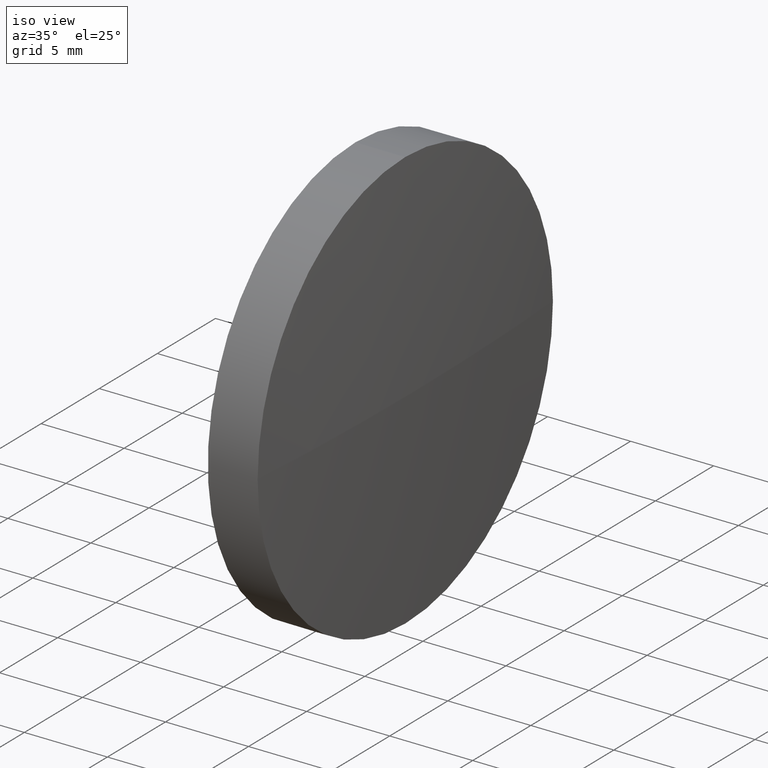
[diagram: clean part render]
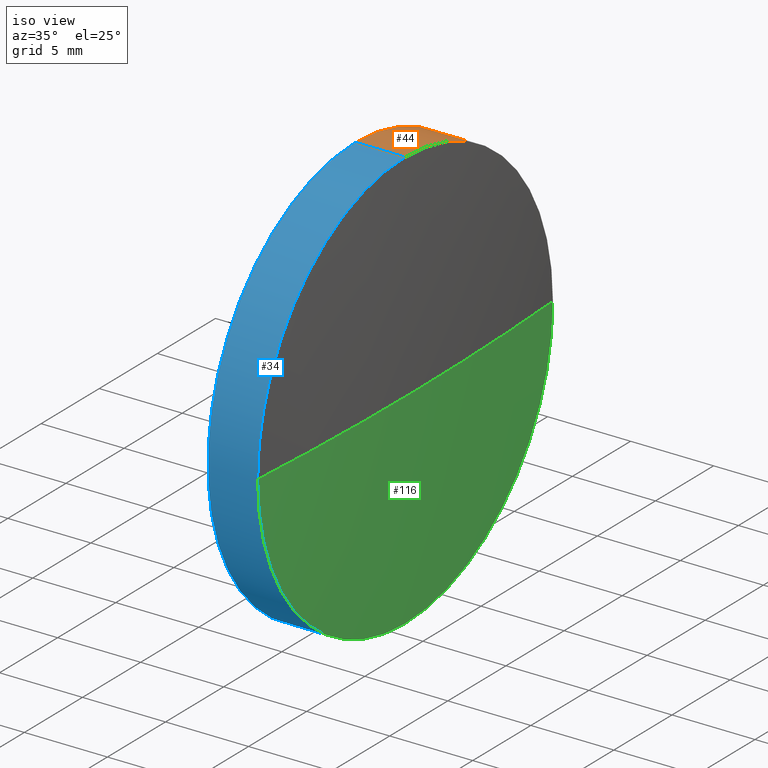
[diagram: same view with three faces highlighted in distinct colors, each labeled with its STEP entity id]
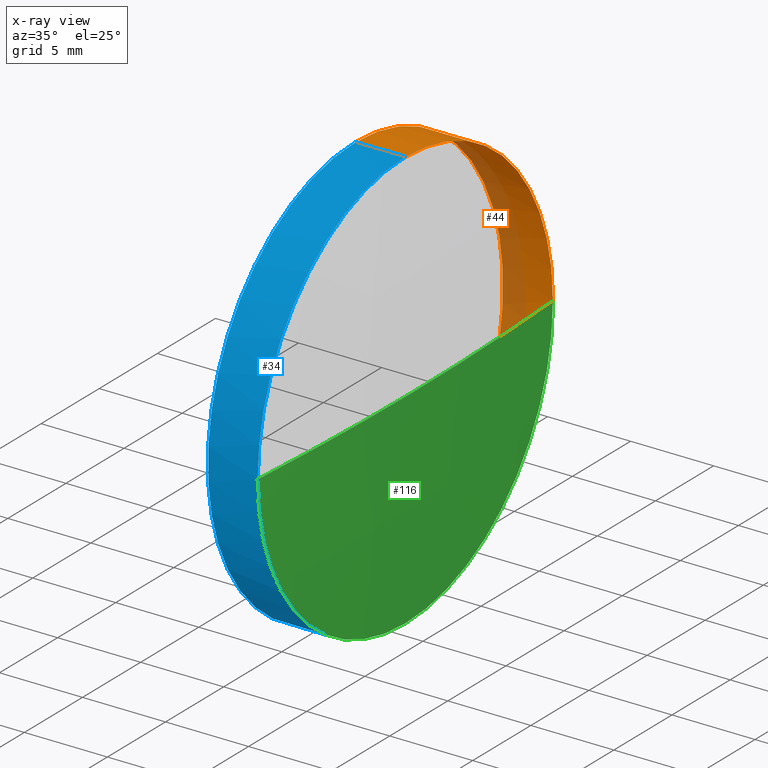
[diagram: x-ray of the same camera — body ghosted, the three highlighted faces saturated]
A machine part, iso view with three faces highlighted in distinct colors.
The next image is the same camera in x-ray (body ghosted, the three faces saturated) — at least one of them is partly hidden behind the body in this view.
Their STEP definitions:

[orange] entity #44 — the highlighted cylindrical surface (partial cylindrical patch) has radius 12.7 mm, axis along (-1, -0, -0).
#2 = ORIENTED_EDGE ( 'NONE', *, *, #56, .F. ) ;
#11 = CARTESIAN_POINT ( 'NONE',  ( 115.7736064308381300, 65.23355492641219700, 12.70000000000000300 ) ) ;
#16 = LINE ( 'NONE', #29, #65 ) ;
#23 = DIRECTION ( 'NONE',  ( 0.0000000000000000000, 0.0000000000000000000, 1.000000000000000000 ) ) ;
#27 = VECTOR ( 'NONE', #91, 1000.000000000000000 ) ;
#29 = CARTESIAN_POINT ( 'NONE',  ( 110.1653732284884500, 65.23355492641219700, 12.70000000000000300 ) ) ;
#32 = DIRECTION ( 'NONE',  ( 0.0000000000000000000, 0.0000000000000000000, 1.000000000000000000 ) ) ;
#38 = CIRCLE ( 'NONE', #139, 12.70000000000000300 ) ;
#39 = VERTEX_POINT ( 'NONE', #71 ) ;
#43 = EDGE_LOOP ( 'NONE', ( #69, #174, #163, #2, #68 ) ) ;
#44 = ADVANCED_FACE ( 'NONE', ( #121 ), #156, .T. ) ;
#45 = CARTESIAN_POINT ( 'NONE',  ( 110.1653732284884500, 65.23355492641219700, -12.70000000000000300 ) ) ;
#48 = DIRECTION ( 'NONE',  ( -1.000000000000000000, -0.0000000000000000000, -0.0000000000000000000 ) ) ;
#50 = AXIS2_PLACEMENT_3D ( 'NONE', #155, #113, #32 ) ;
#56 = EDGE_CURVE ( 'NONE', #146, #150, #16, .T. ) ;
#60 = DIRECTION ( 'NONE',  ( 0.0000000000000000000, 0.0000000000000000000, 1.000000000000000000 ) ) ;
#65 = VECTOR ( 'NONE', #130, 1000.000000000000000 ) ;
#68 = ORIENTED_EDGE ( 'NONE', *, *, #152, .T. ) ;
#69 = ORIENTED_EDGE ( 'NONE', *, *, #112, .T. ) ;
#71 = CARTESIAN_POINT ( 'NONE',  ( 118.7738692334954700, 65.23355492641219700, -12.70000000000000300 ) ) ;
#81 = CARTESIAN_POINT ( 'NONE',  ( 115.7736064308381300, 65.23355492641219700, -12.70000000000000300 ) ) ;
#83 = EDGE_CURVE ( 'NONE', #39, #117, #165, .T. ) ;
#91 = DIRECTION ( 'NONE',  ( -1.000000000000000000, -0.0000000000000000000, -0.0000000000000000000 ) ) ;
#93 = DIRECTION ( 'NONE',  ( -1.000000000000000000, -0.0000000000000000000, -0.0000000000000000000 ) ) ;
#107 = CARTESIAN_POINT ( 'NONE',  ( 118.7738692334954700, 65.23355492641219700, 0.0000000000000000000 ) ) ;
#110 = VERTEX_POINT ( 'NONE', #137 ) ;
#112 = EDGE_CURVE ( 'NONE', #110, #39, #38, .T. ) ;
#113 = DIRECTION ( 'NONE',  ( -1.000000000000000000, -0.0000000000000000000, -0.0000000000000000000 ) ) ;
#117 = VERTEX_POINT ( 'NONE', #81 ) ;
#118 = CARTESIAN_POINT ( 'NONE',  ( 118.7738692334954700, 65.23355492641219700, 0.0000000000000000000 ) ) ;
#121 = FACE_OUTER_BOUND ( 'NONE', #43, .T. ) ;
#128 = EDGE_CURVE ( 'NONE', #150, #117, #136, .T. ) ;
#130 = DIRECTION ( 'NONE',  ( -1.000000000000000000, -0.0000000000000000000, -0.0000000000000000000 ) ) ;
#136 = CIRCLE ( 'NONE', #167, 12.70000000000000300 ) ;
#137 = CARTESIAN_POINT ( 'NONE',  ( 118.7738692334954700, 77.93355492641235600, 0.0000000000000000000 ) ) ;
#139 = AXIS2_PLACEMENT_3D ( 'NONE', #118, #179, #180 ) ;
#146 = VERTEX_POINT ( 'NONE', #181 ) ;
#147 = CARTESIAN_POINT ( 'NONE',  ( 115.7736064308381300, 65.23355492641219700, 0.0000000000000000000 ) ) ;
#148 = AXIS2_PLACEMENT_3D ( 'NONE', #107, #93, #60 ) ;
#150 = VERTEX_POINT ( 'NONE', #11 ) ;
#152 = EDGE_CURVE ( 'NONE', #146, #110, #173, .T. ) ;
#155 = CARTESIAN_POINT ( 'NONE',  ( 110.1653732284884500, 65.23355492641219700, 0.0000000000000000000 ) ) ;
#156 = CYLINDRICAL_SURFACE ( 'NONE', #50, 12.70000000000000300 ) ;
#163 = ORIENTED_EDGE ( 'NONE', *, *, #128, .F. ) ;
#165 = LINE ( 'NONE', #45, #27 ) ;
#167 = AXIS2_PLACEMENT_3D ( 'NONE', #147, #48, #23 ) ;
#173 = CIRCLE ( 'NONE', #148, 12.70000000000000300 ) ;
#174 = ORIENTED_EDGE ( 'NONE', *, *, #83, .T. ) ;
#179 = DIRECTION ( 'NONE',  ( -1.000000000000000000, -0.0000000000000000000, -0.0000000000000000000 ) ) ;
#180 = DIRECTION ( 'NONE',  ( 0.0000000000000000000, 0.0000000000000000000, 1.000000000000000000 ) ) ;
#181 = CARTESIAN_POINT ( 'NONE',  ( 118.7738692334954700, 65.23355492641219700, 12.70000000000000300 ) ) ;

[blue] entity #34 — the highlighted cylindrical surface (partial cylindrical patch) has radius 12.7 mm, axis along (-1, -0, -0).
#1 = DIRECTION ( 'NONE',  ( -1.000000000000000000, -0.0000000000000000000, -0.0000000000000000000 ) ) ;
#3 = CARTESIAN_POINT ( 'NONE',  ( 118.7738692334954700, 65.23355492641219700, 0.0000000000000000000 ) ) ;
#11 = CARTESIAN_POINT ( 'NONE',  ( 115.7736064308381300, 65.23355492641219700, 12.70000000000000300 ) ) ;
#13 = EDGE_CURVE ( 'NONE', #39, #46, #25, .T. ) ;
#16 = LINE ( 'NONE', #29, #65 ) ;
#18 = EDGE_CURVE ( 'NONE', #117, #150, #57, .T. ) ;
#20 = DIRECTION ( 'NONE',  ( 0.0000000000000000000, 0.0000000000000000000, 1.000000000000000000 ) ) ;
#25 = CIRCLE ( 'NONE', #124, 12.70000000000000300 ) ;
#27 = VECTOR ( 'NONE', #91, 1000.000000000000000 ) ;
#29 = CARTESIAN_POINT ( 'NONE',  ( 110.1653732284884500, 65.23355492641219700, 12.70000000000000300 ) ) ;
#34 = ADVANCED_FACE ( 'NONE', ( #108 ), #168, .T. ) ;
#39 = VERTEX_POINT ( 'NONE', #71 ) ;
#41 = ORIENTED_EDGE ( 'NONE', *, *, #56, .T. ) ;
#45 = CARTESIAN_POINT ( 'NONE',  ( 110.1653732284884500, 65.23355492641219700, -12.70000000000000300 ) ) ;
#46 = VERTEX_POINT ( 'NONE', #172 ) ;
#53 = EDGE_CURVE ( 'NONE', #46, #146, #134, .T. ) ;
#54 = DIRECTION ( 'NONE',  ( 0.0000000000000000000, 0.0000000000000000000, 1.000000000000000000 ) ) ;
#56 = EDGE_CURVE ( 'NONE', #146, #150, #16, .T. ) ;
#57 = CIRCLE ( 'NONE', #109, 12.70000000000000300 ) ;
#62 = AXIS2_PLACEMENT_3D ( 'NONE', #89, #100, #20 ) ;
#65 = VECTOR ( 'NONE', #130, 1000.000000000000000 ) ;
#71 = CARTESIAN_POINT ( 'NONE',  ( 118.7738692334954700, 65.23355492641219700, -12.70000000000000300 ) ) ;
#72 = CARTESIAN_POINT ( 'NONE',  ( 115.7736064308381300, 65.23355492641219700, 0.0000000000000000000 ) ) ;
#74 = DIRECTION ( 'NONE',  ( 0.0000000000000000000, 0.0000000000000000000, 1.000000000000000000 ) ) ;
#76 = DIRECTION ( 'NONE',  ( -1.000000000000000000, -0.0000000000000000000, -0.0000000000000000000 ) ) ;
#81 = CARTESIAN_POINT ( 'NONE',  ( 115.7736064308381300, 65.23355492641219700, -12.70000000000000300 ) ) ;
#83 = EDGE_CURVE ( 'NONE', #39, #117, #165, .T. ) ;
#86 = EDGE_LOOP ( 'NONE', ( #141, #125, #186, #41, #98 ) ) ;
#88 = CARTESIAN_POINT ( 'NONE',  ( 110.1653732284884500, 65.23355492641219700, 0.0000000000000000000 ) ) ;
#89 = CARTESIAN_POINT ( 'NONE',  ( 118.7738692334954700, 65.23355492641219700, 0.0000000000000000000 ) ) ;
#90 = AXIS2_PLACEMENT_3D ( 'NONE', #88, #1, #54 ) ;
#91 = DIRECTION ( 'NONE',  ( -1.000000000000000000, -0.0000000000000000000, -0.0000000000000000000 ) ) ;
#98 = ORIENTED_EDGE ( 'NONE', *, *, #18, .F. ) ;
#100 = DIRECTION ( 'NONE',  ( -1.000000000000000000, -0.0000000000000000000, -0.0000000000000000000 ) ) ;
#108 = FACE_OUTER_BOUND ( 'NONE', #86, .T. ) ;
#109 = AXIS2_PLACEMENT_3D ( 'NONE', #72, #76, #74 ) ;
#117 = VERTEX_POINT ( 'NONE', #81 ) ;
#124 = AXIS2_PLACEMENT_3D ( 'NONE', #3, #132, #171 ) ;
#125 = ORIENTED_EDGE ( 'NONE', *, *, #13, .T. ) ;
#130 = DIRECTION ( 'NONE',  ( -1.000000000000000000, -0.0000000000000000000, -0.0000000000000000000 ) ) ;
#132 = DIRECTION ( 'NONE',  ( -1.000000000000000000, -0.0000000000000000000, -0.0000000000000000000 ) ) ;
#134 = CIRCLE ( 'NONE', #62, 12.70000000000000300 ) ;
#141 = ORIENTED_EDGE ( 'NONE', *, *, #83, .F. ) ;
#146 = VERTEX_POINT ( 'NONE', #181 ) ;
#150 = VERTEX_POINT ( 'NONE', #11 ) ;
#165 = LINE ( 'NONE', #45, #27 ) ;
#168 = CYLINDRICAL_SURFACE ( 'NONE', #90, 12.70000000000000300 ) ;
#171 = DIRECTION ( 'NONE',  ( 0.0000000000000000000, 0.0000000000000000000, 1.000000000000000000 ) ) ;
#172 = CARTESIAN_POINT ( 'NONE',  ( 118.7738692334954700, 52.53355492641202300, -1.555301434917158900E-015 ) ) ;
#181 = CARTESIAN_POINT ( 'NONE',  ( 118.7738692334954700, 65.23355492641219700, 12.70000000000000300 ) ) ;
#186 = ORIENTED_EDGE ( 'NONE', *, *, #53, .T. ) ;

[green] entity #116 — the highlighted spherical surface has radius 184.031 mm.
#3 = CARTESIAN_POINT ( 'NONE',  ( 118.7738692334954700, 65.23355492641219700, 0.0000000000000000000 ) ) ;
#7 = DIRECTION ( 'NONE',  ( -0.0000000000000000000, 0.0000000000000000000, 1.000000000000000000 ) ) ;
#9 = DIRECTION ( 'NONE',  ( 0.0000000000000000000, 1.224646799147353200E-016, -1.000000000000000000 ) ) ;
#13 = EDGE_CURVE ( 'NONE', #39, #46, #25, .T. ) ;
#24 = CARTESIAN_POINT ( 'NONE',  ( -64.81839356916185600, 65.23355492641219700, 0.0000000000000000000 ) ) ;
#25 = CIRCLE ( 'NONE', #124, 12.70000000000000300 ) ;
#33 = DIRECTION ( 'NONE',  ( 0.0000000000000000000, 1.000000000000000000, 0.0000000000000000000 ) ) ;
#35 = CARTESIAN_POINT ( 'NONE',  ( 119.2126064308381400, 65.23355492641221100, 0.0000000000000000000 ) ) ;
#38 = CIRCLE ( 'NONE', #139, 12.70000000000000300 ) ;
#39 = VERTEX_POINT ( 'NONE', #71 ) ;
#46 = VERTEX_POINT ( 'NONE', #172 ) ;
#51 = CIRCLE ( 'NONE', #95, 184.0310000000000100 ) ;
#52 = EDGE_LOOP ( 'NONE', ( #66, #123, #140, #75 ) ) ;
#61 = CARTESIAN_POINT ( 'NONE',  ( -64.81839356916185600, 65.23355492641219700, 0.0000000000000000000 ) ) ;
#66 = ORIENTED_EDGE ( 'NONE', *, *, #67, .F. ) ;
#67 = EDGE_CURVE ( 'NONE', #78, #110, #73, .T. ) ;
#70 = AXIS2_PLACEMENT_3D ( 'NONE', #24, #161, #33 ) ;
#71 = CARTESIAN_POINT ( 'NONE',  ( 118.7738692334954700, 65.23355492641219700, -12.70000000000000300 ) ) ;
#73 = CIRCLE ( 'NONE', #131, 184.0310000000000100 ) ;
#75 = ORIENTED_EDGE ( 'NONE', *, *, #112, .F. ) ;
#78 = VERTEX_POINT ( 'NONE', #35 ) ;
#95 = AXIS2_PLACEMENT_3D ( 'NONE', #104, #9, #145 ) ;
#97 = SPHERICAL_SURFACE ( 'NONE', #70, 184.0310000000000100 ) ;
#104 = CARTESIAN_POINT ( 'NONE',  ( -64.81839356916185600, 65.23355492641219700, 0.0000000000000000000 ) ) ;
#110 = VERTEX_POINT ( 'NONE', #137 ) ;
#112 = EDGE_CURVE ( 'NONE', #110, #39, #38, .T. ) ;
#116 = ADVANCED_FACE ( 'NONE', ( #183 ), #97, .T. ) ;
#118 = CARTESIAN_POINT ( 'NONE',  ( 118.7738692334954700, 65.23355492641219700, 0.0000000000000000000 ) ) ;
#123 = ORIENTED_EDGE ( 'NONE', *, *, #143, .T. ) ;
#124 = AXIS2_PLACEMENT_3D ( 'NONE', #3, #132, #171 ) ;
#131 = AXIS2_PLACEMENT_3D ( 'NONE', #61, #7, #178 ) ;
#132 = DIRECTION ( 'NONE',  ( -1.000000000000000000, -0.0000000000000000000, -0.0000000000000000000 ) ) ;
#137 = CARTESIAN_POINT ( 'NONE',  ( 118.7738692334954700, 77.93355492641235600, 0.0000000000000000000 ) ) ;
#139 = AXIS2_PLACEMENT_3D ( 'NONE', #118, #179, #180 ) ;
#140 = ORIENTED_EDGE ( 'NONE', *, *, #13, .F. ) ;
#143 = EDGE_CURVE ( 'NONE', #78, #46, #51, .T. ) ;
#145 = DIRECTION ( 'NONE',  ( 0.0000000000000000000, 1.000000000000000000, 1.224646799147353200E-016 ) ) ;
#161 = DIRECTION ( 'NONE',  ( -0.0000000000000000000, 0.0000000000000000000, -1.000000000000000000 ) ) ;
#171 = DIRECTION ( 'NONE',  ( 0.0000000000000000000, 0.0000000000000000000, 1.000000000000000000 ) ) ;
#172 = CARTESIAN_POINT ( 'NONE',  ( 118.7738692334954700, 52.53355492641202300, -1.555301434917158900E-015 ) ) ;
#178 = DIRECTION ( 'NONE',  ( 1.000000000000000000, 0.0000000000000000000, 0.0000000000000000000 ) ) ;
#179 = DIRECTION ( 'NONE',  ( -1.000000000000000000, -0.0000000000000000000, -0.0000000000000000000 ) ) ;
#180 = DIRECTION ( 'NONE',  ( 0.0000000000000000000, 0.0000000000000000000, 1.000000000000000000 ) ) ;
#183 = FACE_OUTER_BOUND ( 'NONE', #52, .T. ) ;